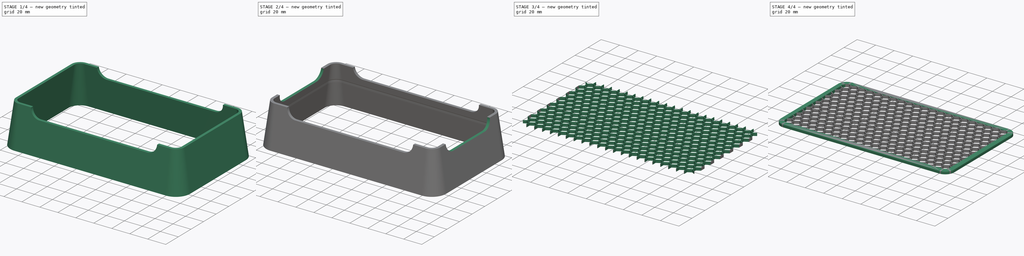
[diagram: build sequence overview — one tinted view per stage of 4, left to right]
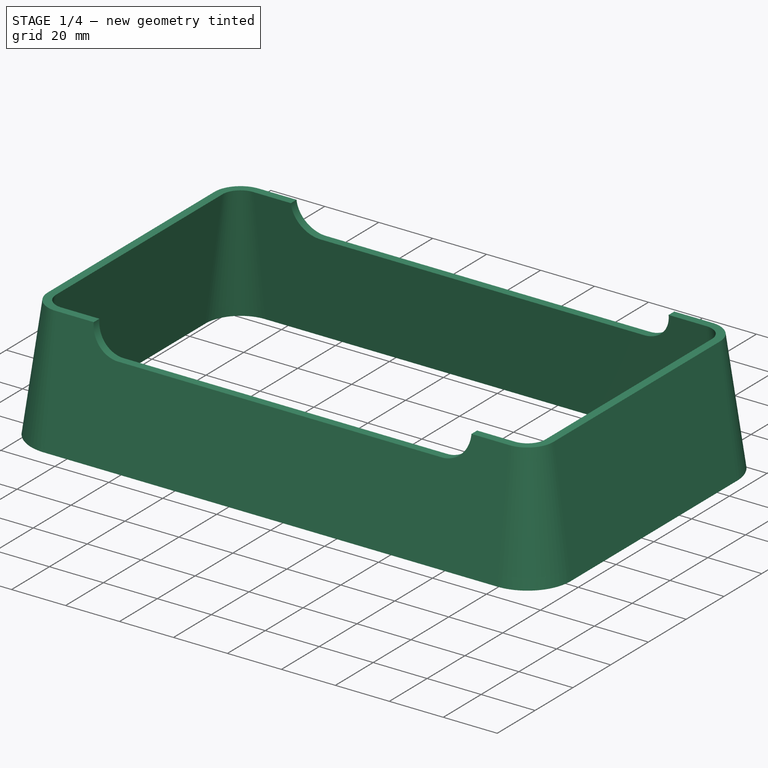
[diagram: stage 1 of 4 — iso view after this stage's code; geometry added in this stage tinted green]
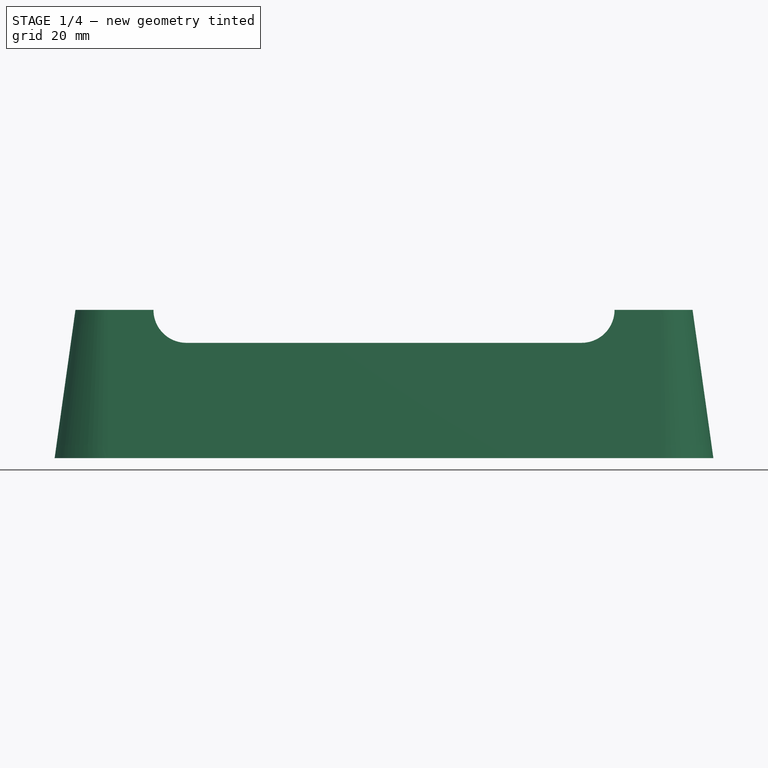
[diagram: stage 1 of 4 — front view after this stage's code; geometry added in this stage tinted green]
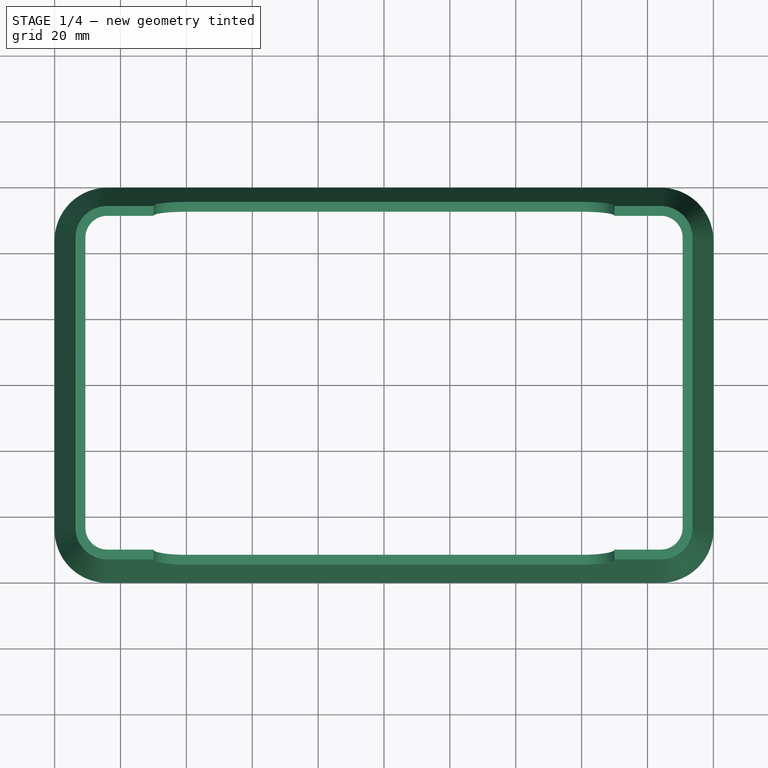
[diagram: stage 1 of 4 — top view after this stage's code; geometry added in this stage tinted green]
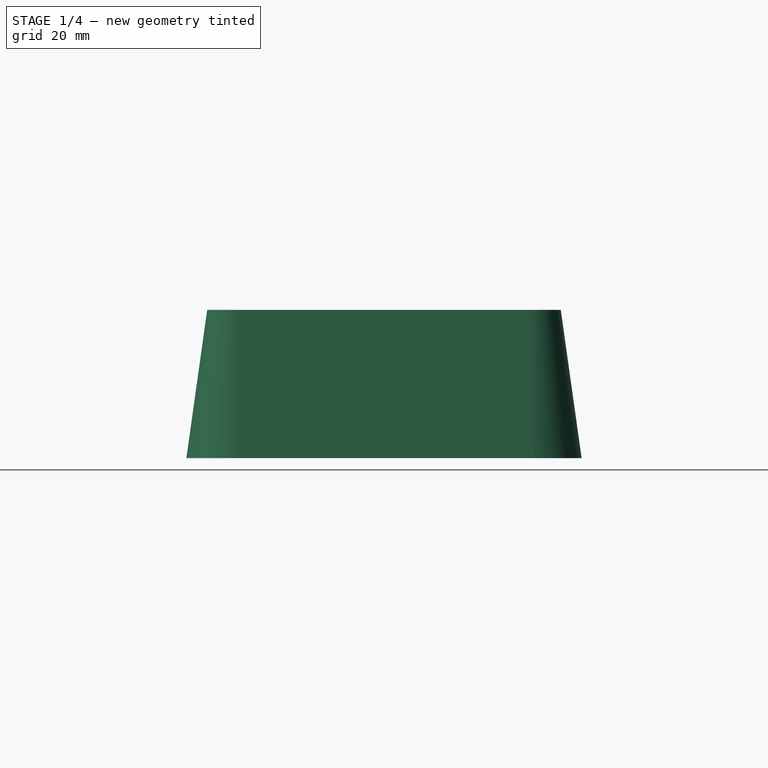
[diagram: stage 1 of 4 — right view after this stage's code; geometry added in this stage tinted green]
FCSTD DOCUMENT  (FreeCAD 1.0R39285 (Git))
Label: Multi-body_design_2
License: All rights reserved
LicenseURL: http://en.wikipedia.org/wiki/All_rights_reserved
objects: Sketcher::SketchObject×9, PartDesign::Pad×3, PartDesign::Pocket×3, PartDesign::SubtractivePipe×2, PartDesign::Body×2, PartDesign::LinearPattern×2, PartDesign::Mirrored×2, PartDesign::SubShapeBinder×1, PartDesign::MultiTransform×1
note: 55 computed .brp shape members not serialized (recipe doc carries the construction recipe); baked Part::Feature solids carry a one-line shape summary decoded from their .brp

FEATURE [Sketcher::SketchObject] Sketch
  ArcFitTolerance = 1e-06
  AttachmentSupport = -> [XY_Plane]
  FullyConstrained = true
  MakeInternals = false
  MapMode = 5
  sketch-geometry (18):
    g0: LineSegment StartX=-84 StartY=-60 StartZ=0 EndX=84 EndY=-60 EndZ=0
    g1: LineSegment StartX=100 StartY=-44 StartZ=0 EndX=100 EndY=44 EndZ=0
    g2: LineSegment StartX=84 StartY=60 StartZ=0 EndX=-84 EndY=60 EndZ=0
    g3: LineSegment StartX=-100 StartY=44 StartZ=0 EndX=-100 EndY=-44 EndZ=0
    g4: ArcOfCircle CenterX=-84 CenterY=-44 CenterZ=0 NormalX=0 NormalY=0 NormalZ=1 AngleXU=0 Radius=16 StartAngle=3.14159 EndAngle=4.71239
    g5: ArcOfCircle CenterX=84 CenterY=-44 CenterZ=0 NormalX=0 NormalY=0 NormalZ=1 AngleXU=0 Radius=16 StartAngle=4.71239 EndAngle=6.28319
    g6: ArcOfCircle CenterX=84 CenterY=44 CenterZ=0 NormalX=0 NormalY=0 NormalZ=1 AngleXU=0 Radius=16 StartAngle=0 EndAngle=1.5708
    g7: ArcOfCircle CenterX=-84 CenterY=44 CenterZ=0 NormalX=0 NormalY=0 NormalZ=1 AngleXU=0 Radius=16 StartAngle=1.5708 EndAngle=3.14159
    g8: GeomPoint [constr] X=100 Y=60 Z=0
    g9: GeomPoint [constr] X=0 Y=0 Z=0
    g10: ArcOfCircle CenterX=-84 CenterY=44 CenterZ=0 NormalX=0 NormalY=0 NormalZ=1 AngleXU=0 Radius=13 StartAngle=1.5708 EndAngle=3.14159
    g11: LineSegment StartX=-97 StartY=44 StartZ=0 EndX=-97 EndY=-44 EndZ=0
    g12: ArcOfCircle CenterX=-84 CenterY=-44 CenterZ=0 NormalX=0 NormalY=0 NormalZ=1 AngleXU=0 Radius=13 StartAngle=3.14159 EndAngle=4.71239
    g13: LineSegment StartX=-84 StartY=-57 StartZ=0 EndX=84 EndY=-57 EndZ=0
    g14: ArcOfCircle CenterX=84 CenterY=-44 CenterZ=0 NormalX=0 NormalY=0 NormalZ=1 AngleXU=0 Radius=13 StartAngle=4.71239 EndAngle=6.28319
    g15: LineSegment StartX=97 StartY=-44 StartZ=0 EndX=97 EndY=44 EndZ=0
    g16: ArcOfCircle CenterX=84 CenterY=44 CenterZ=0 NormalX=0 NormalY=0 NormalZ=1 AngleXU=0 Radius=13 StartAngle=0 EndAngle=1.5708
    g17: LineSegment StartX=84 StartY=57 StartZ=0 EndX=-84 EndY=57 EndZ=0
  constraints (38):
    c: Tangent(g0,g4) = -1.5708
    c: Tangent(g0,g5) = -1.5708
    c: Tangent(g1,g5) = -1.5708
    c: Tangent(g1,g6) = -1.5708
    c: Tangent(g2,g6) = -1.5708
    c: Tangent(g2,g7) = -1.5708
    c: Tangent(g3,g7) = -1.5708
    c: Tangent(g3,g4) = -1.5708
    c: Horizontal(g0)
    c: Horizontal(g2)
    c: Vertical(g1)
    c: Vertical(g3)
    c: Equal(g4,g5)
    c: Equal(g5,g6)
    c: Equal(g6,g7)
    c: Symmetric(g2,g0,g9)
    c: PointOnObject(g8,g1)
    c: PointOnObject(g8,g2)
    c: Distance(g1,g3) = 200
    c: Distance(g0,g2) = 120
    c: Radius(g5) = 16
    c: Coincident(g9,g-1)
    c: Tangent(g10,g11) = -1.5708
    c: Tangent(g10,g17) = -1.5708
    c: Tangent(g11,g12) = -1.5708
    c: Tangent(g12,g13) = -1.5708
    c: Tangent(g13,g14) = -1.5708
    c: Tangent(g14,g15) = -1.5708
    c: Tangent(g15,g16) = -1.5708
    c: Tangent(g16,g17) = -1.5708
    c: Parallel(g17,g2)
    c: Coincident(g10,g7)
    c: Parallel(g11,g3)
    c: Coincident(g12,g4)
    c: Parallel(g13,g0)
    c: Coincident(g14,g5)
    c: Coincident(g16,g6)
    c: Distance(g16,g6) = 3
FEATURE [PartDesign::Pad] Pad
  Direction = (0,0,1)
  Length = 45
  Length2 = 10
  Profile = -> Sketch
  ReferenceAxis = -> Sketch [N_Axis]
  Refine = true
  Suppressed = false
  TaperAngle = -8
  Type = 0
FEATURE [Sketcher::SketchObject] Sketch001
  ArcFitTolerance = 1e-06
  AttachmentSupport = -> [XZ_Plane]
  ExternalGeometry = -> [Pad]
  FullyConstrained = true
  MakeInternals = false
  MapMode = 5
  Placement = pos=(0,0,0) rot=(1,0,0;1.5708rad)
  sketch-geometry (4):
    g0: ArcOfCircle CenterX=-60 CenterY=45 CenterZ=0 NormalX=0 NormalY=0 NormalZ=1 AngleXU=0 Radius=10 StartAngle=1.5708 EndAngle=4.71239
    g1: ArcOfCircle CenterX=60 CenterY=45 CenterZ=0 NormalX=0 NormalY=0 NormalZ=1 AngleXU=0 Radius=10 StartAngle=4.71239 EndAngle=7.85398
    g2: LineSegment StartX=-60 StartY=55 StartZ=0 EndX=60 EndY=55 EndZ=0
    g3: LineSegment StartX=-60 StartY=35 StartZ=0 EndX=60 EndY=35 EndZ=0
  constraints (9):
    c: Tangent(g0,g2) = 1.5708
    c: Tangent(g0,g3) = -1.5708
    c: Tangent(g1,g2) = 1.5708
    c: Tangent(g1,g3) = -1.5708
    c: Equal(g0,g1)
    c: Distance(g0,g1) = 120
    c: Radius(g0) = 10
    c: Symmetric(g1,g0,g-2)
    c: PointOnObject(g1,g-3)
FEATURE [PartDesign::Pocket] Pocket
  BaseFeature = -> Pad
  Direction = (0,1,-2e-16)
  Length = 5
  Length2 = 5
  Midplane = true
  Profile = -> Sketch001
  ReferenceAxis = -> Sketch001 [N_Axis]
  Refine = true
  Suppressed = false
  Type = 1
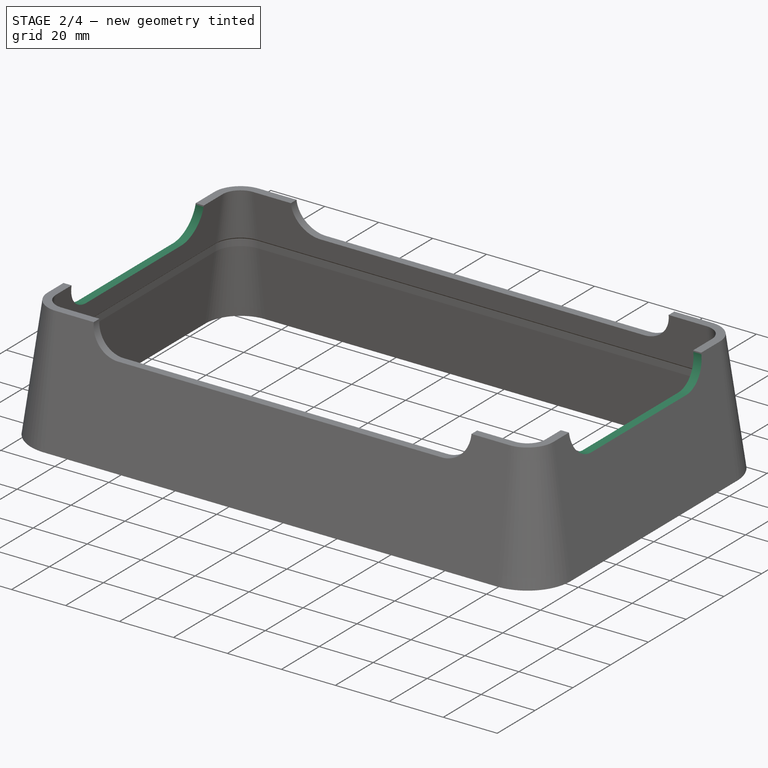
[diagram: stage 2 of 4 — iso view after this stage's code; geometry added in this stage tinted green]
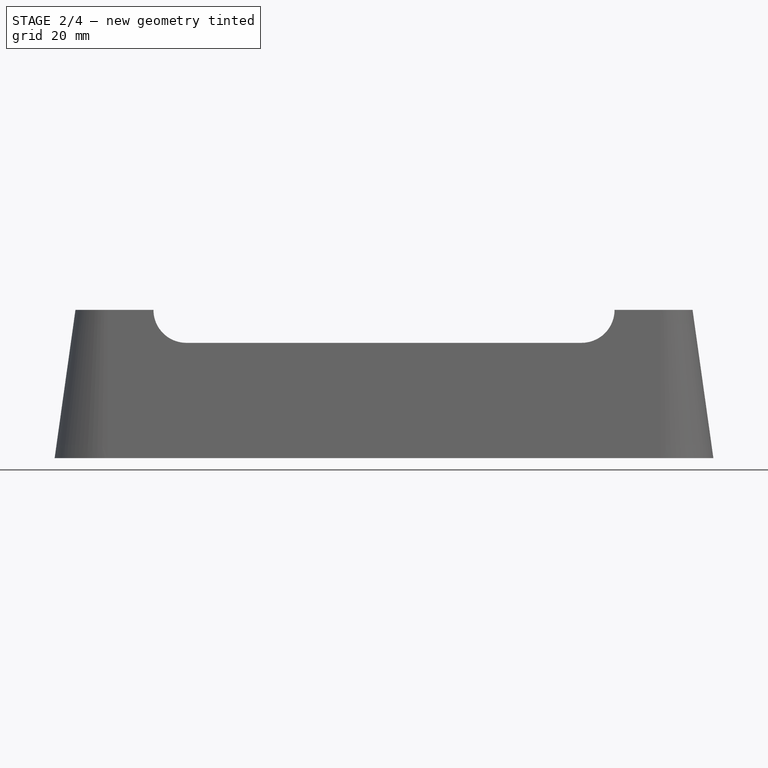
[diagram: stage 2 of 4 — front view after this stage's code; geometry added in this stage tinted green]
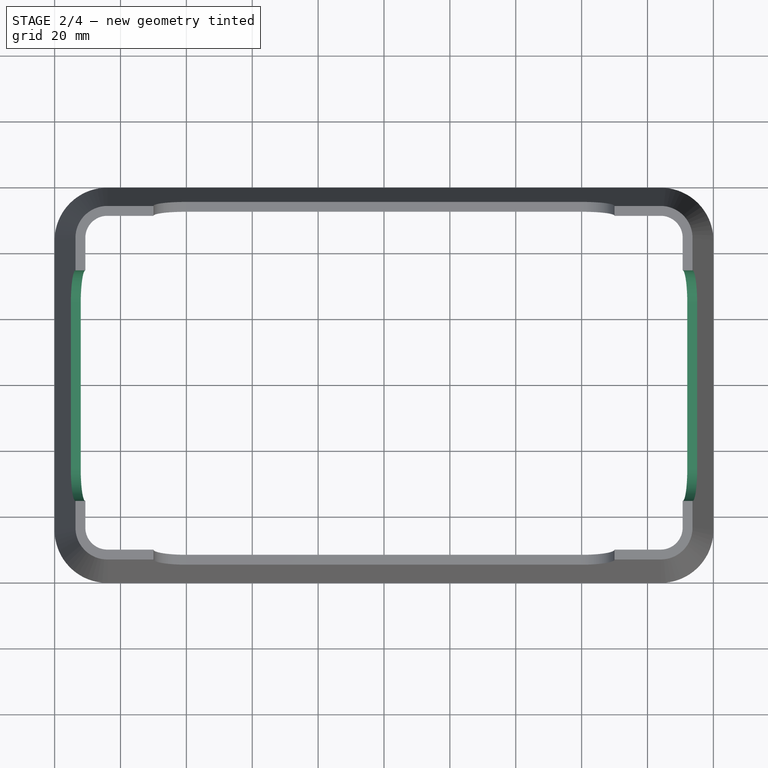
[diagram: stage 2 of 4 — top view after this stage's code; geometry added in this stage tinted green]
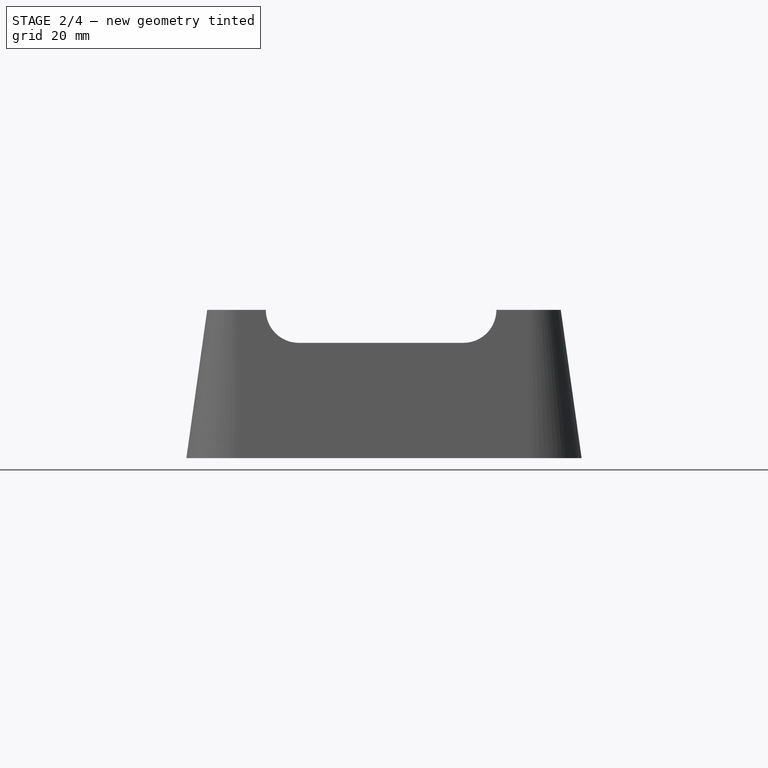
[diagram: stage 2 of 4 — right view after this stage's code; geometry added in this stage tinted green]
FEATURE [Sketcher::SketchObject] Sketch002
  ArcFitTolerance = 1e-06
  AttachmentSupport = -> [YZ_Plane]
  ExternalGeometry = -> [Pocket]
  FullyConstrained = false
  MakeInternals = false
  MapMode = 5
  Placement = pos=(0,0,0) rot=(0.57735,0.57735,0.57735;2.0944rad)
  sketch-geometry (4):
    g0: ArcOfCircle CenterX=-25.8836 CenterY=45 CenterZ=0 NormalX=0 NormalY=0 NormalZ=1 AngleXU=0 Radius=10 StartAngle=1.5708 EndAngle=4.71239
    g1: ArcOfCircle CenterX=24.1164 CenterY=45 CenterZ=0 NormalX=0 NormalY=0 NormalZ=1 AngleXU=0 Radius=10 StartAngle=4.71239 EndAngle=7.85398
    g2: LineSegment StartX=-25.8836 StartY=55 StartZ=0 EndX=24.1164 EndY=55 EndZ=0
    g3: LineSegment StartX=-25.8836 StartY=35 StartZ=0 EndX=24.1164 EndY=35 EndZ=0
  constraints (9):
    c: Tangent(g0,g2) = 1.5708
    c: Tangent(g0,g3) = -1.5708
    c: Tangent(g1,g2) = 1.5708
    c: Tangent(g1,g3) = -1.5708
    c: Equal(g0,g1)
    c: Horizontal(g3)
    c: Distance(g0,g1) = 50
    c: Radius(g0) = 10
    c: PointOnObject(g1,g-3)
FEATURE [PartDesign::Pocket] Pocket001
  BaseFeature = -> Pocket
  Direction = (-1,0,0)
  Length = 5
  Length2 = 5
  Midplane = true
  Profile = -> Sketch002
  ReferenceAxis = -> Sketch002 [N_Axis]
  Refine = true
  Suppressed = false
  Type = 1
FEATURE [Sketcher::SketchObject] Sketch003
  ArcFitTolerance = 1e-06
  AttachmentOffset = pos=(0,0,25) rot=(0,0,1;0rad)
  AttachmentSupport = -> [XY_Plane]
  ExternalGeometry = -> [Pocket001]
  FullyConstrained = true
  MakeInternals = false
  MapMode = 5
  Placement = pos=(0,0,25) rot=(0,0,1;0rad)
  expr: Constraints[20] = 200 - tan(8) * 25 * 2 - 6
  sketch-geometry (10):
    g0: LineSegment StartX=-84 StartY=-53.4865 StartZ=0 EndX=84 EndY=-53.4865 EndZ=0
    g1: LineSegment StartX=93.4865 StartY=-44 StartZ=0 EndX=93.4865 EndY=44 EndZ=0
    g2: LineSegment StartX=84 StartY=53.4865 StartZ=0 EndX=-84 EndY=53.4865 EndZ=0
    g3: LineSegment StartX=-93.4865 StartY=44 StartZ=0 EndX=-93.4865 EndY=-44 EndZ=0
    g4: ArcOfCircle CenterX=-84 CenterY=-44 CenterZ=0 NormalX=0 NormalY=0 NormalZ=1 AngleXU=0 Radius=9.48648 StartAngle=3.14159 EndAngle=4.71239
    g5: ArcOfCircle CenterX=84 CenterY=-44 CenterZ=0 NormalX=0 NormalY=0 NormalZ=1 AngleXU=0 Radius=9.48648 StartAngle=4.71239 EndAngle=6.28319
    g6: ArcOfCircle CenterX=84 CenterY=44 CenterZ=0 NormalX=0 NormalY=0 NormalZ=1 AngleXU=0 Radius=9.48648 StartAngle=1e-16 EndAngle=1.5708
    g7: ArcOfCircle CenterX=-84 CenterY=44 CenterZ=0 NormalX=0 NormalY=0 NormalZ=1 AngleXU=0 Radius=9.48648 StartAngle=1.5708 EndAngle=3.14159
    g8: GeomPoint [constr] X=93.4865 Y=53.4865 Z=0
    g9: GeomPoint [constr] X=0 Y=0 Z=0
  constraints (21):
    c: Tangent(g0,g4) = -1.5708
    c: Tangent(g0,g5) = -1.5708
    c: Tangent(g1,g5) = -1.5708
    c: Tangent(g1,g6) = -1.5708
    c: Tangent(g2,g6) = -1.5708
    c: Tangent(g2,g7) = -1.5708
    c: Tangent(g3,g7) = -1.5708
    c: Tangent(g3,g4) = -1.5708
    c: Horizontal(g0)
    c: Horizontal(g2)
    c: Vertical(g1)
    c: Vertical(g3)
    c: Equal(g4,g5)
    c: Equal(g5,g6)
    c: Equal(g6,g7)
    c: Symmetric(g2,g0,g9)
    c: PointOnObject(g8,g1)
    c: PointOnObject(g8,g2)
    c: Coincident(g9,g-1)
    c: Coincident(g7,g-3)
    c: DistanceX(g3,g1) = 186.973
FEATURE [Sketcher::SketchObject] Sketch004
  ArcFitTolerance = 1e-06
  AttachmentSupport = -> [XZ_Plane]
  ExternalGeometry = -> [Pocket001]
  FullyConstrained = true
  MakeInternals = false
  MapMode = 5
  Placement = pos=(0,0,0) rot=(1,0,0;1.5708rad)
  sketch-geometry (3):
    g0: LineSegment StartX=-93.4865 StartY=25 StartZ=0 EndX=-93.4865 EndY=27.5784 EndZ=0
    g1: LineSegment StartX=-93.4865 StartY=27.5784 StartZ=0 EndX=-93.0649 EndY=28 EndZ=0
    g2: LineSegment StartX=-93.0649 StartY=28 StartZ=0 EndX=-93.4865 EndY=25 EndZ=0
  constraints (9):
    c: Vertical(g0)
    c: Coincident(g0,g1)
    c: Coincident(g1,g2)
    c: Coincident(g2,g0)
    c: Angle(g0,g1) = 2.35619
    c: PointOnObject(g0,g-3)
    c: PointOnObject(g1,g-3)
    c: DistanceY(g0,g1) = 3
    c: DistanceY(g-3,g0) = 25
FEATURE [PartDesign::SubtractivePipe] SubtractivePipe
  AuxilleryCurvelinear = true
  AuxillerySpineTangent = false
  BaseFeature = -> Pocket001
  Binormal = (0,0,0)
  Mode = 0
  Profile = -> Sketch004
  Refine = true
  Spine = -> Sketch003
  SpineTangent = false
  Suppressed = false
  Transformation = 0
  Transition = 0
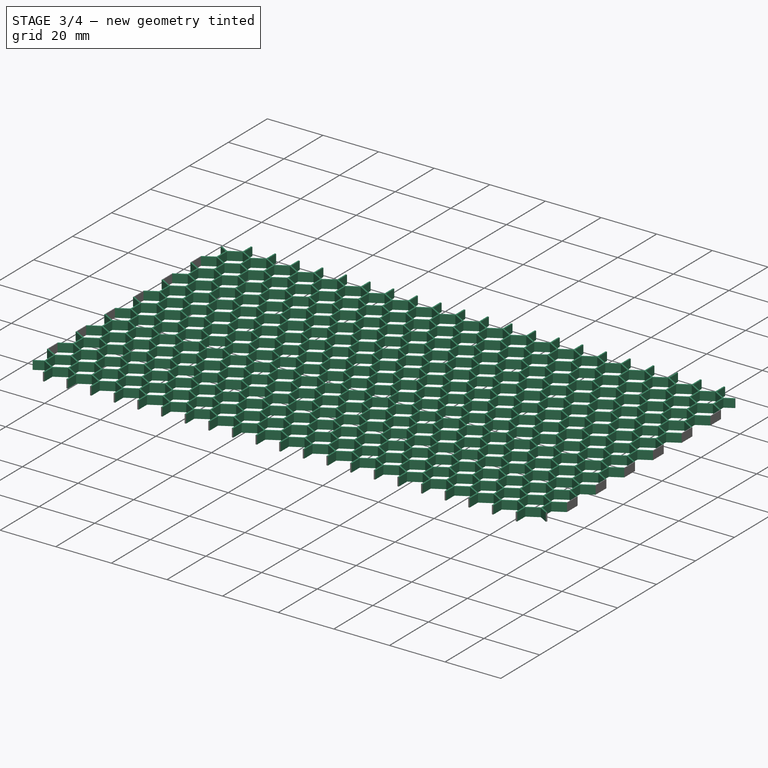
[diagram: stage 3 of 4 — iso view after this stage's code; geometry added in this stage tinted green]
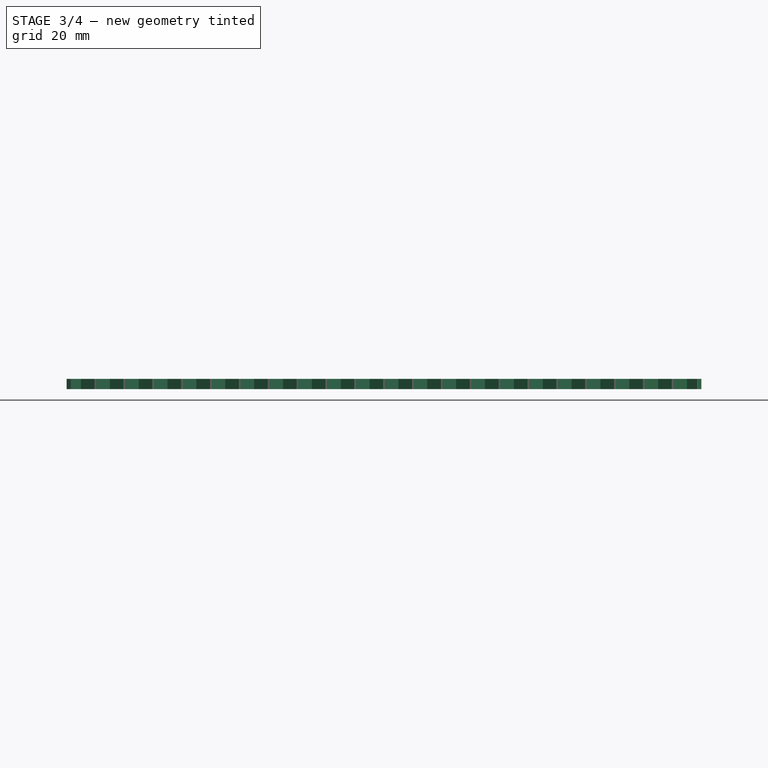
[diagram: stage 3 of 4 — front view after this stage's code; geometry added in this stage tinted green]
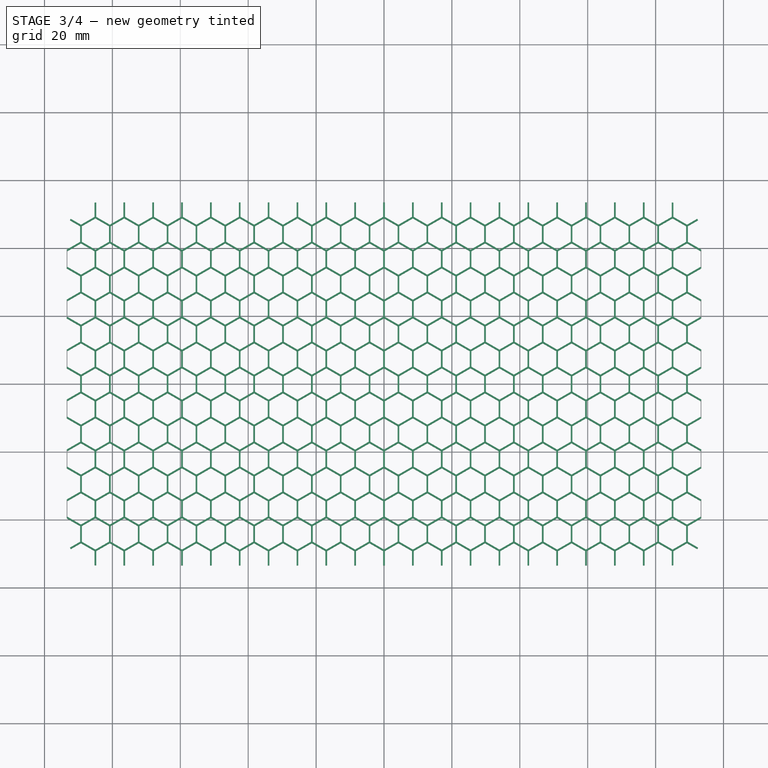
[diagram: stage 3 of 4 — top view after this stage's code; geometry added in this stage tinted green]
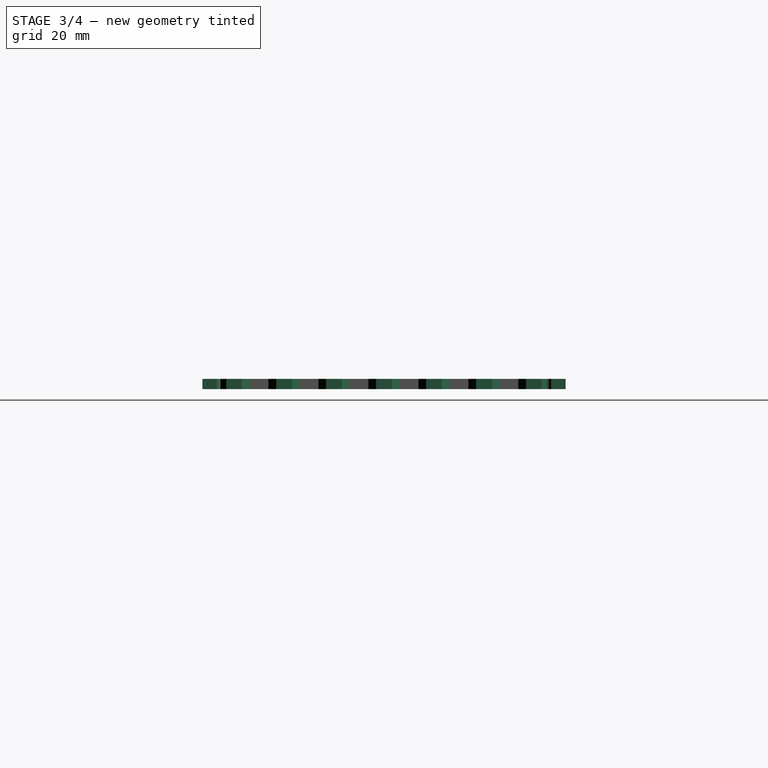
[diagram: stage 3 of 4 — right view after this stage's code; geometry added in this stage tinted green]
FEATURE [PartDesign::Body] Body
  AllowCompound = true
  Group = -> [Sketch,Pad,Sketch001,Pocket,Sketch002,Pocket001,Sketch003,Sketch004,SubtractivePipe]
  Origin = -> Origin
  Tip = -> SubtractivePipe
FEATURE [PartDesign::SubShapeBinder] Binder
  BindCopyOnChange = 0
  BindMode = 0
  ClaimChildren = false
  Context = -> Body001 [Binder.]
  Fuse = false
  MakeFace = true
  OffsetFill = false
  OffsetIntersection = false
  OffsetJoinType = 0
  OffsetOpenResult = false
  PartialLoad = false
  Refine = true
  Relative = true
  Support = -> [Body[Sketch003.]]
  _Version = 2
FEATURE [Sketcher::SketchObject] Sketch005
  ArcFitTolerance = 1e-06
  AttachmentOffset = pos=(0,0,25) rot=(0,0,1;0rad)
  AttachmentSupport = -> [XY_Plane001]
  ExternalGeometry = -> [Binder]
  FullyConstrained = true
  MakeInternals = false
  MapMode = 5
  Placement = pos=(0,0,25) rot=(0,0,1;0rad)
  sketch-geometry (10):
    g0: LineSegment StartX=93.4865 StartY=-44 StartZ=0 EndX=93.4865 EndY=44 EndZ=0
    g1: LineSegment StartX=84 StartY=53.4865 StartZ=0 EndX=-84 EndY=53.4865 EndZ=0
    g2: LineSegment StartX=-93.4865 StartY=44 StartZ=0 EndX=-93.4865 EndY=-44 EndZ=0
    g3: LineSegment StartX=-84 StartY=-53.4865 StartZ=0 EndX=84 EndY=-53.4865 EndZ=0
    g4: ArcOfCircle CenterX=84 CenterY=-44 CenterZ=0 NormalX=0 NormalY=0 NormalZ=1 AngleXU=0 Radius=9.48648 StartAngle=4.71239 EndAngle=6.28319
    g5: ArcOfCircle CenterX=84 CenterY=44 CenterZ=0 NormalX=0 NormalY=0 NormalZ=1 AngleXU=0 Radius=9.48648 StartAngle=0 EndAngle=1.5708
    g6: ArcOfCircle CenterX=-84 CenterY=44 CenterZ=0 NormalX=0 NormalY=0 NormalZ=1 AngleXU=0 Radius=9.48648 StartAngle=1.5708 EndAngle=3.14159
    g7: ArcOfCircle CenterX=-84 CenterY=-44 CenterZ=0 NormalX=0 NormalY=0 NormalZ=1 AngleXU=0 Radius=9.48648 StartAngle=3.14159 EndAngle=4.71239
    g8: GeomPoint [constr] X=-93.4865 Y=53.4865 Z=0
    g9: GeomPoint [constr] X=0 Y=0 Z=0
  constraints (20):
    c: Tangent(g0,g4) = -1.5708
    c: Tangent(g0,g5) = -1.5708
    c: Tangent(g1,g5) = -1.5708
    c: Tangent(g1,g6) = -1.5708
    c: Tangent(g2,g6) = -1.5708
    c: Tangent(g2,g7) = -1.5708
    c: Tangent(g3,g7) = -1.5708
    c: Tangent(g3,g4) = -1.5708
    c: Vertical(g0)
    c: Vertical(g2)
    c: Horizontal(g3)
    c: Equal(g4,g5)
    c: Equal(g5,g6)
    c: Equal(g6,g7)
    c: Symmetric(g2,g0,g9)
    c: PointOnObject(g8,g1)
    c: PointOnObject(g8,g2)
    c: Coincident(g9,g-1)
    c: Coincident(g6,g-3)
    c: Coincident(g1,g-3)
FEATURE [PartDesign::Pad] Pad001
  Direction = (0,0,1)
  Length = 3
  Length2 = 10
  Profile = -> Sketch005
  ReferenceAxis = -> Sketch005 [N_Axis]
  Refine = true
  Suppressed = false
  Type = 0
FEATURE [Sketcher::SketchObject] Sketch006
  ArcFitTolerance = 1e-06
  AttachmentSupport = -> [Pad001]
  FullyConstrained = true
  MakeInternals = false
  MapMode = 5
  Placement = pos=(0,0,28) rot=(0,0,1;0rad)
  sketch-geometry (15):
    g0: LineSegment StartX=4 StartY=2.3094 StartZ=0 EndX=1.696e-13 EndY=4.6188 EndZ=0
    g1: LineSegment StartX=1.696e-13 StartY=4.6188 StartZ=0 EndX=-4 EndY=2.3094 EndZ=0
    g2: LineSegment StartX=-4 StartY=2.3094 StartZ=0 EndX=-4 EndY=-2.3094 EndZ=0
    g3: LineSegment StartX=-4 StartY=-2.3094 StartZ=0 EndX=2.22e-14 EndY=-4.6188 EndZ=0
    g4: LineSegment StartX=2.22e-14 StartY=-4.6188 StartZ=0 EndX=4 EndY=-2.3094 EndZ=0
    g5: LineSegment StartX=4 StartY=-2.3094 StartZ=0 EndX=4 EndY=2.3094 EndZ=0
    g6: Circle [constr] CenterX=0 CenterY=0 CenterZ=0 NormalX=0 NormalY=0 NormalZ=1 AngleXU=0 Radius=4.6188
    g7: LineSegment StartX=8.25 StartY=9.67062 StartZ=0 EndX=4.25 EndY=11.98 EndZ=0
    g8: LineSegment StartX=4.25 StartY=11.98 StartZ=0 EndX=0.25 EndY=9.67062 EndZ=0
    g9: LineSegment StartX=0.25 StartY=9.67062 StartZ=0 EndX=0.25 EndY=5.05181 EndZ=0
    g10: LineSegment StartX=0.25 StartY=5.05181 StartZ=0 EndX=4.25 EndY=2.74241 EndZ=0
    g11: LineSegment StartX=4.25 StartY=2.74241 StartZ=0 EndX=8.25 EndY=5.05181 EndZ=0
    g12: LineSegment StartX=8.25 StartY=5.05181 StartZ=0 EndX=8.25 EndY=9.67062 EndZ=0
    g13: Circle [constr] CenterX=4.25 CenterY=7.36122 CenterZ=0 NormalX=0 NormalY=0 NormalZ=1 AngleXU=0 Radius=4.6188
    g14: LineSegment [constr] StartX=2.25 StartY=3.89711 StartZ=0 EndX=2 EndY=3.4641 EndZ=0
  constraints (37):
    c: Coincident(g0,g1)
    c: Coincident(g1,g2)
    c: Coincident(g2,g3)
    c: Coincident(g3,g4)
    c: Coincident(g4,g5)
    c: Coincident(g5,g0)
    c: Equal(g0, g1-g5) x5
    c: PointOnObject(g0,g6)
    c: PointOnObject(g1,g6)
    c: PointOnObject(g2,g6)
    c: PointOnObject(g3,g6)
    c: PointOnObject(g4,g6)
    c: PointOnObject(g5,g6)
    c: Coincident(g6,g-1)
    c: Coincident(g7,g8)
    c: Coincident(g8,g9)
    c: Coincident(g9,g10)
    c: Coincident(g10,g11)
    c: Coincident(g11,g12)
    c: Coincident(g12,g7)
    c: Equal(g7, g8-g12) x5
    c: PointOnObject(g7,g13)
    c: PointOnObject(g8,g13)
    c: PointOnObject(g9,g13)
    c: PointOnObject(g10,g13)
    c: PointOnObject(g11,g13)
    c: PointOnObject(g12,g13)
    c: Vertical(g5)
    c: Vertical(g12)
    c: Equal(g6,g13)
    c: Distance(g2,g4) = 8
    c: Symmetric(g10,g10,g14)
    c: Symmetric(g0,g0,g14)
    c: Perpendicular(g14,g10)
    c: Distance(g14,g14) = 0.5
    c: DistanceX(g-1,g13) = 4.25  'Polygon_X'
    c: DistanceY(g-1,g13) = 7.36122  'Polygon_Y'
FEATURE [PartDesign::Pocket] Pocket002
  BaseFeature = -> Pad001
  Direction = (0,0,-1)
  Length = 5
  Length2 = 5
  Profile = -> Sketch006
  ReferenceAxis = -> Sketch006 [N_Axis]
  Refine = true
  Suppressed = false
  Type = 0
FEATURE [PartDesign::LinearPattern] LinearPattern
  Direction = -> Sketch006 [H_Axis]
  Length = 93.5
  Mode = 1
  Occurrences = 12
  Offset = 8.5
  Refine = true
  Suppressed = false
  TransformMode = 0
  expr: Offset = Sketch006.Constraints.Polygon_X * 2
FEATURE [PartDesign::LinearPattern] LinearPattern001
  Direction = -> Sketch006 [V_Axis]
  Length = 44.1673
  Mode = 1
  Occurrences = 4
  Offset = 14.7224
  Refine = true
  Suppressed = false
  TransformMode = 0
  expr: Offset = Sketch006.Constraints.Polygon_Y * 2
FEATURE [PartDesign::Mirrored] Mirrored
  MirrorPlane = -> Sketch006 [V_Axis]
  Refine = true
  Suppressed = false
  TransformMode = 0
FEATURE [PartDesign::Mirrored] Mirrored001
  MirrorPlane = -> Sketch006 [H_Axis]
  Refine = true
  Suppressed = false
  TransformMode = 0
FEATURE [PartDesign::MultiTransform] MultiTransform
  BaseFeature = -> Pocket002
  Originals = -> [Pocket002]
  Refine = true
  Suppressed = false
  TransformMode = 0
  Transformations = -> [LinearPattern,LinearPattern001,Mirrored,Mirrored001]
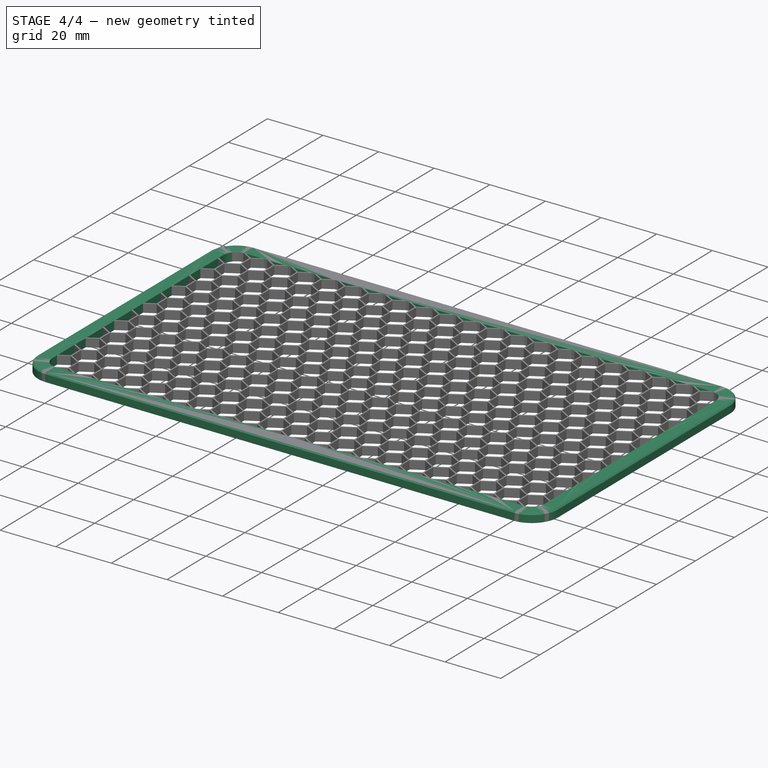
[diagram: stage 4 of 4 — iso view after this stage's code; geometry added in this stage tinted green]
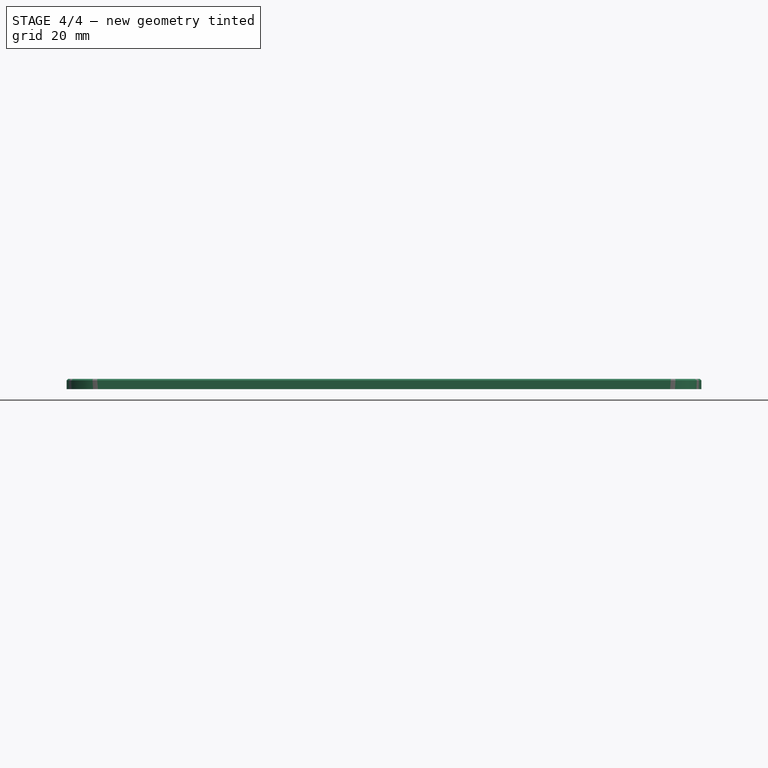
[diagram: stage 4 of 4 — front view after this stage's code; geometry added in this stage tinted green]
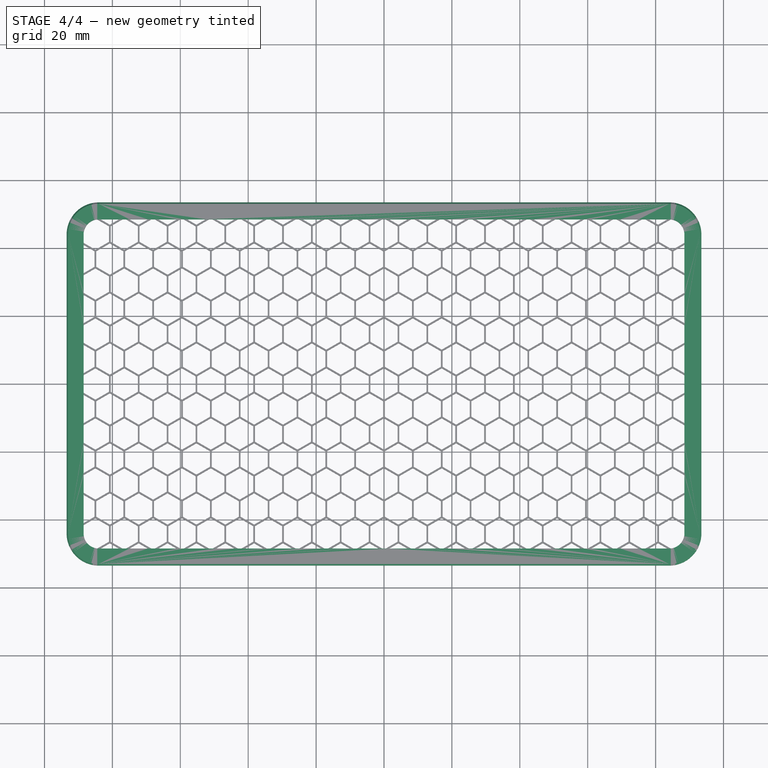
[diagram: stage 4 of 4 — top view after this stage's code; geometry added in this stage tinted green]
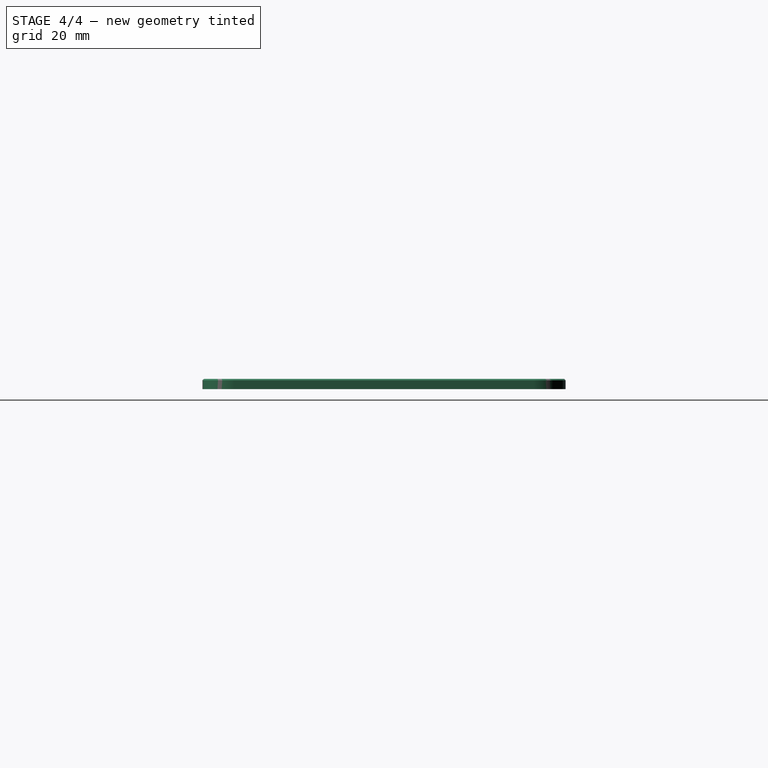
[diagram: stage 4 of 4 — right view after this stage's code; geometry added in this stage tinted green]
FEATURE [Sketcher::SketchObject] Sketch007
  ArcFitTolerance = 1e-06
  AttachmentOffset = pos=(0,0,25) rot=(0,0,1;0rad)
  AttachmentSupport = -> [XY_Plane001]
  ExternalGeometry = -> [Binder]
  FullyConstrained = true
  MakeInternals = false
  MapMode = 5
  Placement = pos=(0,0,25) rot=(0,0,1;0rad)
  sketch-geometry (18):
    g0: LineSegment StartX=93.4865 StartY=-44 StartZ=0 EndX=93.4865 EndY=44 EndZ=0
    g1: LineSegment StartX=84 StartY=53.4865 StartZ=0 EndX=-84 EndY=53.4865 EndZ=0
    g2: LineSegment StartX=-93.4865 StartY=44 StartZ=0 EndX=-93.4865 EndY=-44 EndZ=0
    g3: LineSegment StartX=-84 StartY=-53.4865 StartZ=0 EndX=84 EndY=-53.4865 EndZ=0
    g4: ArcOfCircle CenterX=84 CenterY=-44 CenterZ=0 NormalX=0 NormalY=0 NormalZ=1 AngleXU=0 Radius=9.48648 StartAngle=4.71239 EndAngle=6.28319
    g5: ArcOfCircle CenterX=84 CenterY=44 CenterZ=0 NormalX=0 NormalY=0 NormalZ=1 AngleXU=0 Radius=9.48648 StartAngle=2e-16 EndAngle=1.5708
    g6: ArcOfCircle CenterX=-84 CenterY=44 CenterZ=0 NormalX=0 NormalY=0 NormalZ=1 AngleXU=0 Radius=9.48648 StartAngle=1.5708 EndAngle=3.14159
    g7: ArcOfCircle CenterX=-84 CenterY=-44 CenterZ=0 NormalX=0 NormalY=0 NormalZ=1 AngleXU=0 Radius=9.48648 StartAngle=3.14159 EndAngle=4.71239
    g8: GeomPoint [constr] X=-93.4865 Y=53.4865 Z=0
    g9: GeomPoint [constr] X=0 Y=0 Z=0
    g10: ArcOfCircle CenterX=-84 CenterY=-44 CenterZ=0 NormalX=0 NormalY=0 NormalZ=1 AngleXU=0 Radius=4.48648 StartAngle=3.14159 EndAngle=4.71239
    g11: LineSegment StartX=-84 StartY=-48.4865 StartZ=0 EndX=84 EndY=-48.4865 EndZ=0
    g12: ArcOfCircle CenterX=84 CenterY=-44 CenterZ=0 NormalX=0 NormalY=0 NormalZ=1 AngleXU=0 Radius=4.48648 StartAngle=4.71239 EndAngle=6.28319
    g13: LineSegment StartX=88.4865 StartY=-44 StartZ=0 EndX=88.4865 EndY=44 EndZ=0
    g14: ArcOfCircle CenterX=84 CenterY=44 CenterZ=0 NormalX=0 NormalY=0 NormalZ=1 AngleXU=0 Radius=4.48648 StartAngle=3e-16 EndAngle=1.5708
    g15: LineSegment StartX=84 StartY=48.4865 StartZ=0 EndX=-84 EndY=48.4865 EndZ=0
    g16: ArcOfCircle CenterX=-84 CenterY=44 CenterZ=0 NormalX=0 NormalY=0 NormalZ=1 AngleXU=0 Radius=4.48648 StartAngle=1.5708 EndAngle=3.14159
    g17: LineSegment StartX=-88.4865 StartY=44 StartZ=0 EndX=-88.4865 EndY=-44 EndZ=0
  constraints (36):
    c: Tangent(g0,g4) = -1.5708
    c: Tangent(g0,g5) = -1.5708
    c: Tangent(g1,g5) = -1.5708
    c: Tangent(g1,g6) = -1.5708
    c: Tangent(g2,g6) = -1.5708
    c: Tangent(g2,g7) = -1.5708
    c: Tangent(g3,g7) = -1.5708
    c: Tangent(g3,g4) = -1.5708
    c: Vertical(g0)
    c: Vertical(g2)
    c: Horizontal(g3)
    c: Equal(g4,g5)
    c: Equal(g5,g6)
    c: Equal(g6,g7)
    c: Symmetric(g2,g0,g9)
    c: PointOnObject(g8,g1)
    c: PointOnObject(g8,g2)
    c: Coincident(g9,g-1)
    c: Coincident(g6,g-3)
    c: Coincident(g1,g-3)
    c: Tangent(g10,g11) = -1.5708
    c: Tangent(g10,g17) = -1.5708
    c: Tangent(g11,g12) = -1.5708
    c: Tangent(g12,g13) = -1.5708
    c: Tangent(g13,g14) = -1.5708
    c: Tangent(g14,g15) = -1.5708
    c: Tangent(g15,g16) = -1.5708
    c: Tangent(g16,g17) = -1.5708
    c: Parallel(g17,g2)
    c: Coincident(g10,g7)
    c: Parallel(g11,g3)
    c: Coincident(g12,g4)
    c: Parallel(g13,g0)
    c: Coincident(g14,g5)
    c: Coincident(g16,g6)
    c: Distance(g16,g6) = 5
FEATURE [PartDesign::Pad] Pad002
  BaseFeature = -> MultiTransform
  Direction = (0,0,1)
  Length = 3
  Length2 = 10
  Profile = -> Sketch007
  ReferenceAxis = -> Sketch007 [N_Axis]
  Refine = true
  Suppressed = false
  Type = 0
FEATURE [Sketcher::SketchObject] Sketch008
  ArcFitTolerance = 1e-06
  AttachmentSupport = -> [XZ_Plane001]
  ExternalGeometry = -> [Pad002]
  FullyConstrained = true
  MakeInternals = false
  MapMode = 5
  Placement = pos=(0,0,0) rot=(1,0,0;1.5708rad)
  sketch-geometry (4):
    g0: LineSegment StartX=-93.4865 StartY=27.5784 StartZ=0 EndX=-93.4865 EndY=28 EndZ=0
    g1: LineSegment StartX=-93.4865 StartY=28 StartZ=0 EndX=-93.0649 EndY=28 EndZ=0
    g2: LineSegment StartX=-93.0649 StartY=28 StartZ=0 EndX=-93.4865 EndY=27.5784 EndZ=0
    g3: LineSegment [constr] StartX=-93.0649 StartY=28 StartZ=0 EndX=-93.4865 EndY=25 EndZ=0
  constraints (11):
    c: Vertical(g0)
    c: Coincident(g0,g1)
    c: Horizontal(g1)
    c: Coincident(g1,g2)
    c: Coincident(g2,g0)
    c: Equal(g1,g0)
    c: Coincident(g3,g1)
    c: Coincident(g3,g-4)
    c: Angle(g3,g-4) = 0.139626
    c: PointOnObject(g1,g-3)
    c: PointOnObject(g0,g-4)
FEATURE [PartDesign::SubtractivePipe] SubtractivePipe001
  AuxilleryCurvelinear = true
  AuxillerySpineTangent = false
  BaseFeature = -> Pad002
  Binormal = (0,0,0)
  Mode = 0
  Profile = -> Sketch008
  Refine = true
  Spine = -> Sketch005
  SpineTangent = false
  Suppressed = false
  Transformation = 0
  Transition = 0
FEATURE [PartDesign::Body] Body001
  AllowCompound = true
  Group = -> [Binder,Sketch005,Pad001,Sketch006,Pocket002,MultiTransform,LinearPattern,LinearPattern001,Mirrored,Mirrored001,Sketch007,Pad002,Sketch008,SubtractivePipe001]
  Origin = -> Origin001
  Tip = -> SubtractivePipe001
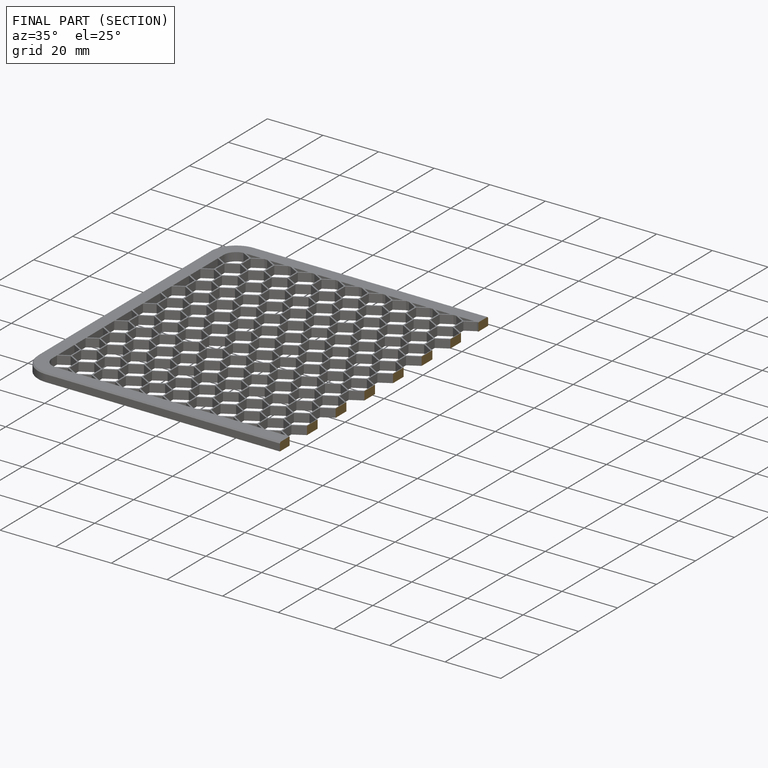
[diagram: finished part — half-section view (interior)]
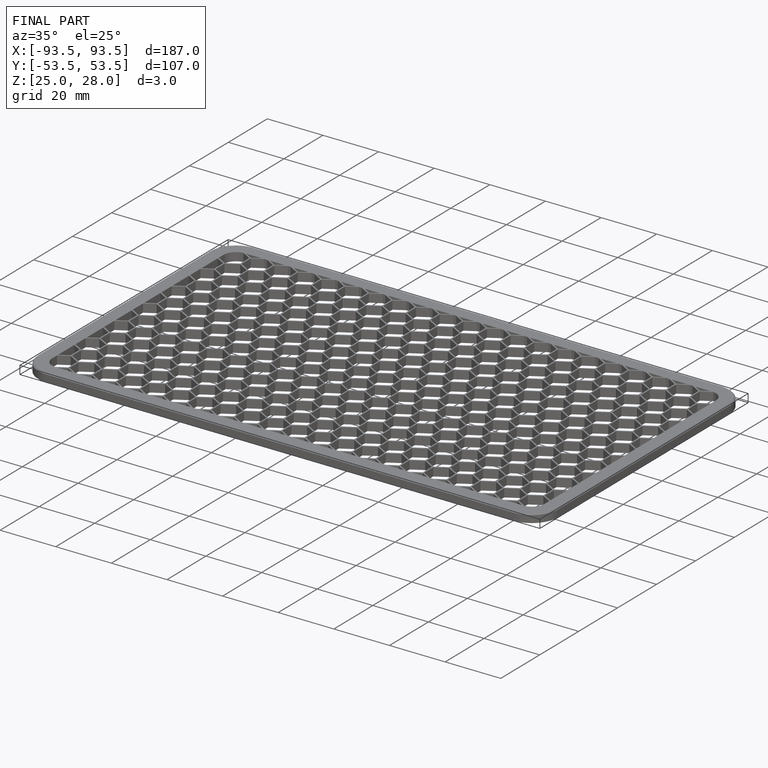
[diagram: finished part — iso view with bounding-box wireframe]
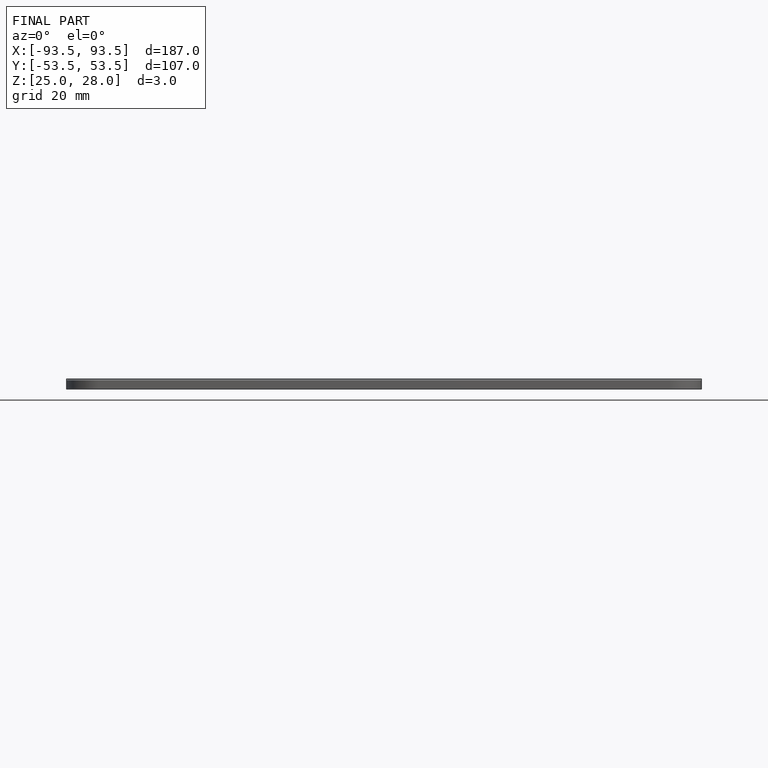
[diagram: finished part — front view with bounding-box wireframe]
